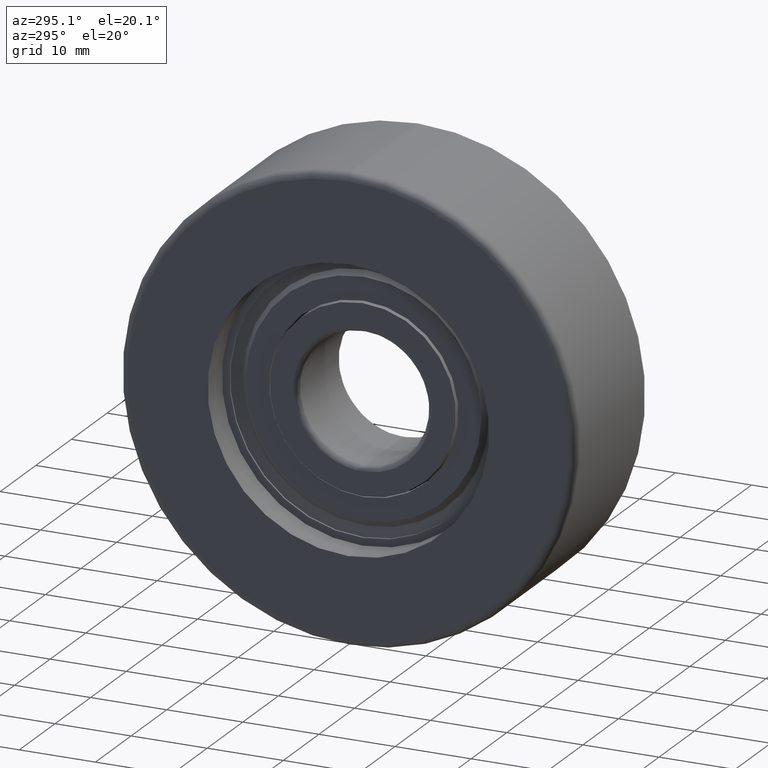
[diagram: clean part render]
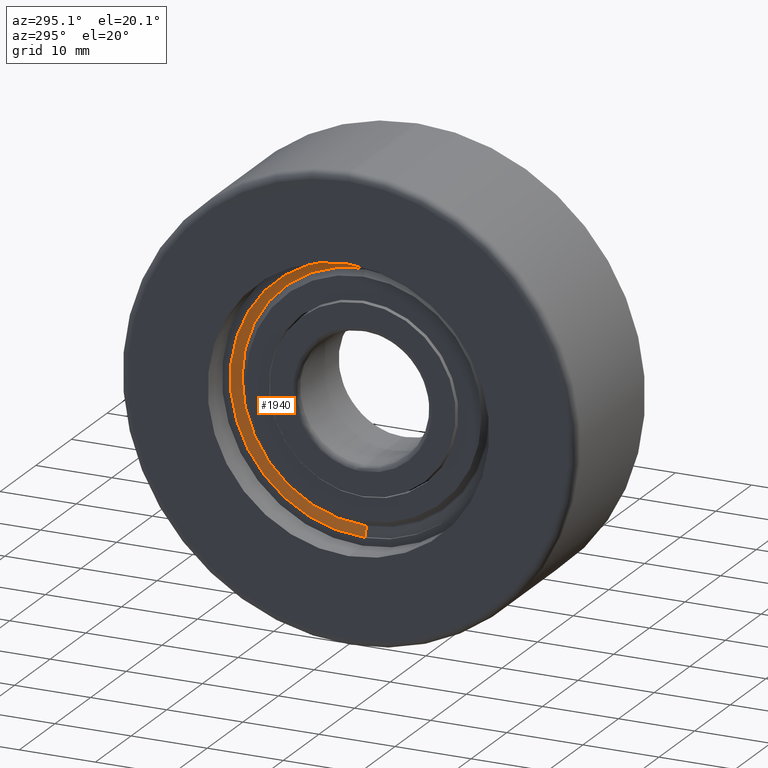
[diagram: same view with one face highlighted and labeled with its STEP entity id]
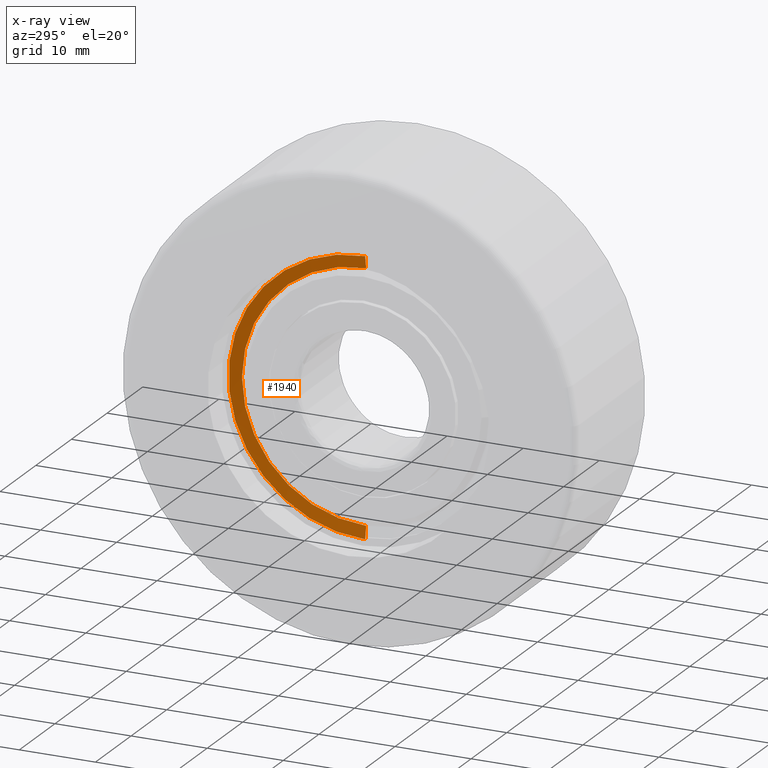
[diagram: x-ray of the same camera — body ghosted, the highlighted face saturated]
A machine part, auxiliary view. The second image highlights one B-rep face of the part: STEP entity #1940.
The next image is the same camera in x-ray: the body ghosted, the highlighted face saturated — about 0% of this face is hidden behind the body in this view.
In plain terms, the highlighted conical surface has half-angle 80 deg.
Its self-contained STEP definition (entity closure, byte-faithful):
#23 = DIRECTION ( 'NONE',  ( -1.195805440141223500E-016, 0.0000000000000000000, 1.000000000000000000 ) ) ;
#59 = DIRECTION ( 'NONE',  ( -1.000000000000000000, -0.0000000000000000000, -1.238501311487398000E-016 ) ) ;
#79 = ORIENTED_EDGE ( 'NONE', *, *, #1441, .F. ) ;
#613 = ORIENTED_EDGE ( 'NONE', *, *, #4283, .T. ) ;
#653 = CONICAL_SURFACE ( 'NONE', #5580, 17.94600000000000200, 1.396263401595460000 ) ;
#1040 = CARTESIAN_POINT ( 'NONE',  ( 0.7092651600646656700, 0.0000000000000000000, -6.479067501374230300E-016 ) ) ;
#1239 = LINE ( 'NONE', #3079, #2791 ) ;
#1441 = EDGE_CURVE ( 'NONE', #4309, #3764, #5504, .T. ) ;
#1860 = AXIS2_PLACEMENT_3D ( 'NONE', #5212, #59, #23 ) ;
#1940 = ADVANCED_FACE ( 'NONE', ( #3233 ), #653, .F. ) ;
#2274 = DIRECTION ( 'NONE',  ( 1.000000000000000000, -0.0000000000000000000, 1.224606353822380000E-016 ) ) ;
#2441 = EDGE_LOOP ( 'NONE', ( #3577, #3893, #613, #79 ) ) ;
#2498 = VERTEX_POINT ( 'NONE', #3211 ) ;
#2586 = VECTOR ( 'NONE', #5575, 1000.000000000000100 ) ;
#2732 = DIRECTION ( 'NONE',  ( 0.0000000000000000000, 1.000000000000000000, 0.0000000000000000000 ) ) ;
#2740 = CARTESIAN_POINT ( 'NONE',  ( 0.7092651600646635600, 0.0000000000000000000, 17.94600000000000200 ) ) ;
#2791 = VECTOR ( 'NONE', #3478, 1000.000000000000100 ) ;
#2797 = CIRCLE ( 'NONE', #1860, 16.32007887707409900 ) ;
#3079 = CARTESIAN_POINT ( 'NONE',  ( 0.7092651600646680000, 2.197751145749840000E-015, -17.94600000000000200 ) ) ;
#3194 = CARTESIAN_POINT ( 'NONE',  ( 0.9959589225403108200, 0.0000000000000000000, 16.32007887707409900 ) ) ;
#3211 = CARTESIAN_POINT ( 'NONE',  ( 0.9959589225403147100, 2.098192190806976600E-015, -16.32007887707409900 ) ) ;
#3233 = FACE_OUTER_BOUND ( 'NONE', #2441, .T. ) ;
#3478 = DIRECTION ( 'NONE',  ( -0.1736481776669337700, 1.206041662501896900E-016, -0.9848077530122073500 ) ) ;
#3577 = ORIENTED_EDGE ( 'NONE', *, *, #5431, .F. ) ;
#3763 = DIRECTION ( 'NONE',  ( -1.000000000000000000, -0.0000000000000000000, -1.238501311487398000E-016 ) ) ;
#3764 = VERTEX_POINT ( 'NONE', #2740 ) ;
#3893 = ORIENTED_EDGE ( 'NONE', *, *, #4072, .F. ) ;
#4005 = CARTESIAN_POINT ( 'NONE',  ( 0.7092651600646678900, 2.197751145749840000E-015, -17.94600000000000200 ) ) ;
#4072 = EDGE_CURVE ( 'NONE', #4401, #2498, #2797, .T. ) ;
#4236 = AXIS2_PLACEMENT_3D ( 'NONE', #1040, #2274, #2732 ) ;
#4283 = EDGE_CURVE ( 'NONE', #4401, #3764, #5282, .T. ) ;
#4309 = VERTEX_POINT ( 'NONE', #4005 ) ;
#4310 = CARTESIAN_POINT ( 'NONE',  ( 0.7092651600646634500, 0.0000000000000000000, 17.94600000000000200 ) ) ;
#4401 = VERTEX_POINT ( 'NONE', #3194 ) ;
#4672 = CARTESIAN_POINT ( 'NONE',  ( 0.7092651600646656700, 0.0000000000000000000, -6.479067501374230300E-016 ) ) ;
#5080 = DIRECTION ( 'NONE',  ( -1.268708660548066000E-016, 0.0000000000000000000, 1.000000000000000000 ) ) ;
#5212 = CARTESIAN_POINT ( 'NONE',  ( 0.9959589225403127100, 0.0000000000000000000, -6.123996900552885100E-016 ) ) ;
#5282 = LINE ( 'NONE', #4310, #2586 ) ;
#5431 = EDGE_CURVE ( 'NONE', #2498, #4309, #1239, .T. ) ;
#5504 = CIRCLE ( 'NONE', #4236, 17.94600000000000200 ) ;
#5575 = DIRECTION ( 'NONE',  ( -0.1736481776669340200, 0.0000000000000000000, 0.9848077530122073500 ) ) ;
#5580 = AXIS2_PLACEMENT_3D ( 'NONE', #4672, #3763, #5080 ) ;